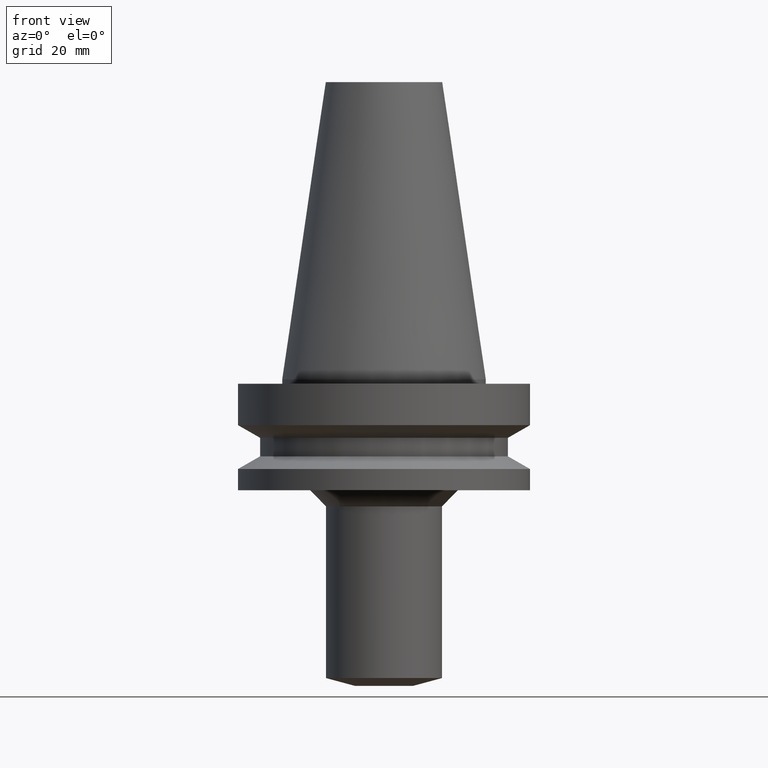
[diagram: clean part render]
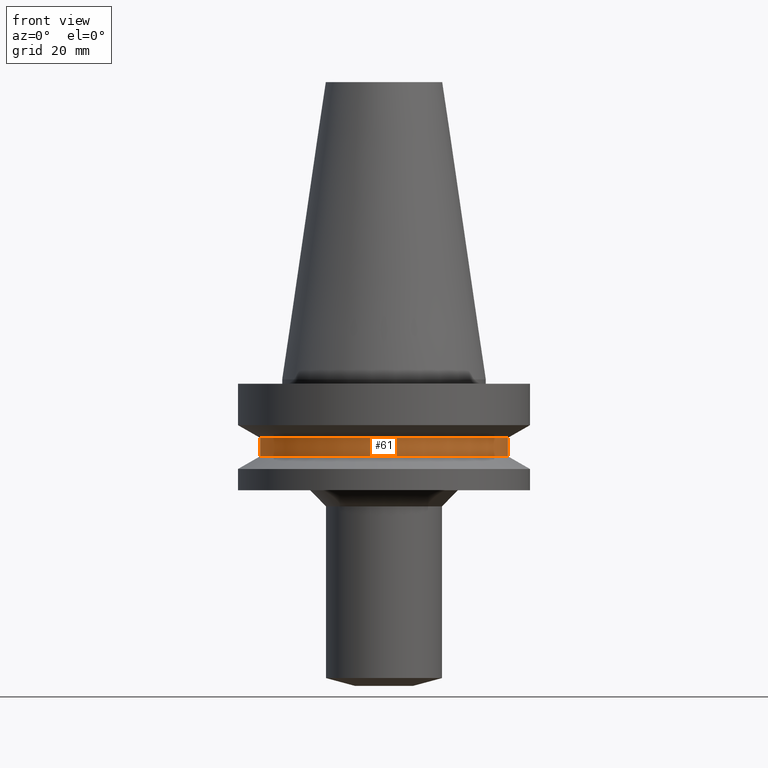
[diagram: same view with one face highlighted and labeled with its STEP entity id]
A machine part, front view. The second image highlights one B-rep face of the part: STEP entity #61.
In plain terms, the highlighted cylindrical surface (bore or boss wall) has radius 42.5 mm, axis along (0, 0, -1).
Its self-contained STEP definition (entity closure, byte-faithful):
#61=ADVANCED_FACE('Unnamed[1]',(#151,#152),#153,.T.);
#85=EDGE_CURVE('Unnamed[1]',#190,#190,#191,.T.);
#99=EDGE_CURVE('Unnamed[1]',#211,#211,#212,.T.);
#151=FACE_BOUND('',#270,.T.);
#152=FACE_BOUND('',#271,.T.);
#153=CYLINDRICAL_SURFACE('',#272,42.5);
#190=VERTEX_POINT('',#319);
#191=CIRCLE('',#320,42.5);
#211=VERTEX_POINT('',#345);
#212=CIRCLE('',#346,42.5);
#270=EDGE_LOOP('',(#403));
#271=EDGE_LOOP('',(#404));
#272=AXIS2_PLACEMENT_3D('',#405,#406,#407);
#319=CARTESIAN_POINT('',(1.2264915470779E-015,42.5,-20.03012702));
#320=AXIS2_PLACEMENT_3D('',#447,#448,#449);
#345=CARTESIAN_POINT('',(1.61468902694396E-015,42.5,-26.36987298));
#346=AXIS2_PLACEMENT_3D('',#472,#473,#474);
#403=ORIENTED_EDGE('',*,*,#99,.F.);
#404=ORIENTED_EDGE('',*,*,#85,.T.);
#405=CARTESIAN_POINT('',(1.42059028701093E-015,2.84118057402186E-015,-23.2));
#406=DIRECTION('',(6.12323399573677E-017,1.22464679914735E-016,-1.0));
#407=DIRECTION('',(-1.23259516440783E-032,1.0,1.22464679914735E-016));
#447=CARTESIAN_POINT('',(1.2264915470779E-015,2.45298309415579E-015,-20.03012702));
#448=DIRECTION('',(6.12323399573677E-017,1.22464679914735E-016,-1.0));
#449=DIRECTION('',(-1.23259516440783E-032,1.0,1.22464679914735E-016));
#472=CARTESIAN_POINT('',(1.61468902694396E-015,3.22937805388792E-015,-26.36987298));
#473=DIRECTION('',(6.12323399573677E-017,1.22464679914735E-016,-1.0));
#474=DIRECTION('',(-1.23259516440783E-032,1.0,1.22464679914735E-016));